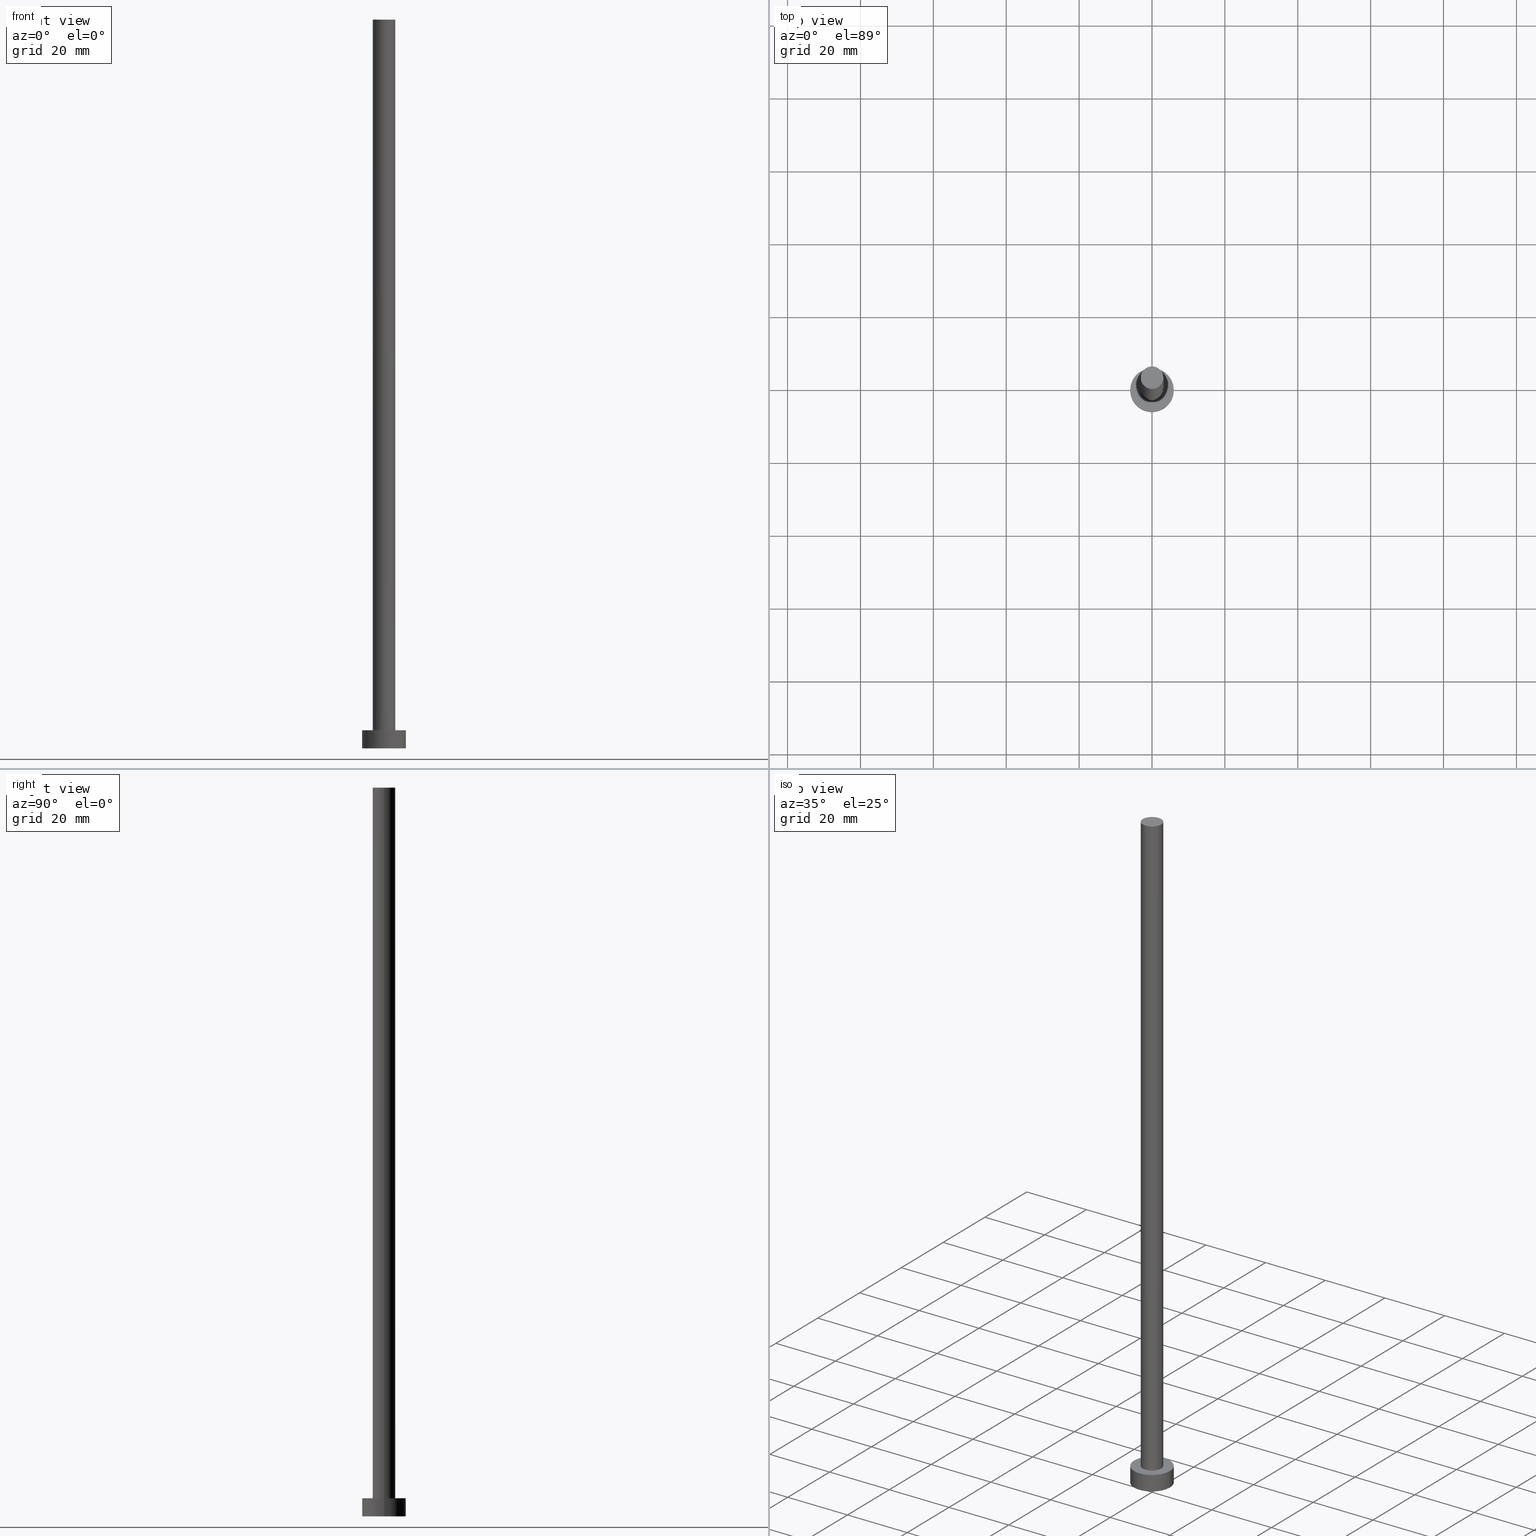
[diagram: canonical four-view strip — front | top / right | iso, engineering-drawing reading convention]
A machine part, canonical four-view strip (front | top / right | iso — engineering-drawing reading convention). The complete STEP part file that produces these views, byte-faithful:
ISO-10303-21;
HEADER;
FILE_DESCRIPTION (( 'STEP AP203' ),
    '1' );
FILE_NAME ('b2dd.STEP',
    '2023-02-13T15:42:44',
    ( '' ),
    ( '' ),
    'SwSTEP 2.0',
    'SolidWorks 2019',
    '' );
FILE_SCHEMA (( 'CONFIG_CONTROL_DESIGN' ));
ENDSEC;

DATA;
#1 = APPLICATION_PROTOCOL_DEFINITION ( 'international standard', 'config_control_design', 1994, #50 ) ;
#2 = CIRCLE ( 'NONE', #120, 6.000000000000000888 ) ;
#3 = VECTOR ( 'NONE', #184, 1000.000000000000000 ) ;
#4 = DIRECTION ( 'NONE',  ( 0.000000000000000000, 0.000000000000000000, 1.000000000000000000 ) ) ;
#5 = CIRCLE ( 'NONE', #31, 6.000000000000000888 ) ;
#6 = DATE_AND_TIME ( #90, #115 ) ;
#7 = ORIENTED_EDGE ( 'NONE', *, *, #220, .T. ) ;
#8 = PERSON_AND_ORGANIZATION ( #70, #210 ) ;
#9 = DATE_AND_TIME ( #48, #179 ) ;
#10 = EDGE_LOOP ( 'NONE', ( #146, #117, #29, #166 ) ) ;
#11 = CIRCLE ( 'NONE', #157, 3.100000000000000089 ) ;
#12 = CARTESIAN_POINT ( 'NONE',  ( 0.000000000000000000, 0.000000000000000000, 5.000000000000000000 ) ) ;
#13 = FACE_BOUND ( 'NONE', #205, .T. ) ;
#14 =( NAMED_UNIT ( * ) SI_UNIT ( $, .STERADIAN. ) SOLID_ANGLE_UNIT ( ) );
#15 = CARTESIAN_POINT ( 'NONE',  ( -6.000000000000000888, 0.000000000000000000, 0.000000000000000000 ) ) ;
#16 = CARTESIAN_POINT ( 'NONE',  ( 6.000000000000000888, 7.347880794884120722E-16, 5.000000000000000000 ) ) ;
#17 = LINE ( 'NONE', #97, #3 ) ;
#18 = APPROVAL_ROLE ( '' ) ;
#19 = DIRECTION ( 'NONE',  ( -0.000000000000000000, -0.000000000000000000, -1.000000000000000000 ) ) ;
#20 = DIRECTION ( 'NONE',  ( 0.000000000000000000, 0.000000000000000000, 1.000000000000000000 ) ) ;
#21 = APPROVAL ( #65, 'NEUR�EN�' ) ;
#22 = APPLICATION_CONTEXT ( 'configuration controlled 3d designs of mechanical parts and assemblies' ) ;
#23 = SECURITY_CLASSIFICATION ( '', '', #181 ) ;
#24 = CC_DESIGN_PERSON_AND_ORGANIZATION_ASSIGNMENT ( #162, #221, ( #102 ) ) ;
#25 = APPROVAL_ROLE ( '' ) ;
#26 = PERSON_AND_ORGANIZATION_ROLE ( 'creator' ) ;
#27 = ORIENTED_EDGE ( 'NONE', *, *, #132, .T. ) ;
#28 = CALENDAR_DATE ( 2023, 13, 2 ) ;
#29 = ORIENTED_EDGE ( 'NONE', *, *, #248, .T. ) ;
#30 = PERSON_AND_ORGANIZATION ( #70, #210 ) ;
#31 = AXIS2_PLACEMENT_3D ( 'NONE', #178, #4, #207 ) ;
#32 = PLANE ( 'NONE',  #107 ) ;
#33 = AXIS2_PLACEMENT_3D ( 'NONE', #245, #100, #228 ) ;
#34 =( LENGTH_UNIT ( ) NAMED_UNIT ( * ) SI_UNIT ( .MILLI., .METRE. ) );
#35 =( NAMED_UNIT ( * ) PLANE_ANGLE_UNIT ( ) SI_UNIT ( $, .RADIAN. ) );
#36 = ORIENTED_EDGE ( 'NONE', *, *, #92, .T. ) ;
#37 = DATE_TIME_ROLE ( 'classification_date' ) ;
#38 = DIRECTION ( 'NONE',  ( -0.000000000000000000, -0.000000000000000000, -1.000000000000000000 ) ) ;
#39 = DIRECTION ( 'NONE',  ( 1.000000000000000000, 0.000000000000000000, 0.000000000000000000 ) ) ;
#40 = ORIENTED_EDGE ( 'NONE', *, *, #104, .T. ) ;
#41 = PRODUCT_DEFINITION ( 'NEZN�M�', '', #102, #219 ) ;
#42 = VERTEX_POINT ( 'NONE', #15 ) ;
#43 = APPLICATION_PROTOCOL_DEFINITION ( 'international standard', 'config_control_design', 1994, #22 ) ;
#44 = ADVANCED_FACE ( 'NONE', ( #111 ), #114, .T. ) ;
#45 = AXIS2_PLACEMENT_3D ( 'NONE', #110, #19, #148 ) ;
#46 = CARTESIAN_POINT ( 'NONE',  ( 6.000000000000000888, 7.347880794884120722E-16, 0.000000000000000000 ) ) ;
#47 = EDGE_CURVE ( 'NONE', #194, #42, #53, .T. ) ;
#48 = CALENDAR_DATE ( 2023, 13, 2 ) ;
#49 = COORDINATED_UNIVERSAL_TIME_OFFSET ( 1, 0, .AHEAD. ) ;
#50 = APPLICATION_CONTEXT ( 'configuration controlled 3d designs of mechanical parts and assemblies' ) ;
#51 = CYLINDRICAL_SURFACE ( 'NONE', #125, 6.000000000000000888 ) ;
#52 = CARTESIAN_POINT ( 'NONE',  ( 0.000000000000000000, 0.000000000000000000, 0.000000000000000000 ) ) ;
#53 = CIRCLE ( 'NONE', #240, 6.000000000000000888 ) ;
#54 = DIRECTION ( 'NONE',  ( 1.000000000000000000, 0.000000000000000000, 0.000000000000000000 ) ) ;
#55 = ORIENTED_EDGE ( 'NONE', *, *, #47, .F. ) ;
#56 = APPROVAL_PERSON_ORGANIZATION ( #91, #199, #93 ) ;
#57 = CARTESIAN_POINT ( 'NONE',  ( 0.000000000000000000, 0.000000000000000000, 0.000000000000000000 ) ) ;
#58 = ADVANCED_BREP_SHAPE_REPRESENTATION ( 'b2dd', ( #185, #133 ), #140 ) ;
#59 = DIRECTION ( 'NONE',  ( -0.000000000000000000, -0.000000000000000000, -1.000000000000000000 ) ) ;
#60 = DIRECTION ( 'NONE',  ( 0.000000000000000000, 0.000000000000000000, 1.000000000000000000 ) ) ;
#61 = ORIENTED_EDGE ( 'NONE', *, *, #203, .F. ) ;
#62 = DIRECTION ( 'NONE',  ( 1.000000000000000000, 0.000000000000000000, 0.000000000000000000 ) ) ;
#63 = PRODUCT ( 'b2dd', 'b2dd', '', ( #158 ) ) ;
#64 = APPROVAL_DATE_TIME ( #253, #150 ) ;
#65 = APPROVAL_STATUS ( 'not_yet_approved' ) ;
#66 = VERTEX_POINT ( 'NONE', #74 ) ;
#67 = CIRCLE ( 'NONE', #204, 6.000000000000000888 ) ;
#68 = ADVANCED_FACE ( 'NONE', ( #76 ), #32, .T. ) ;
#69 = VECTOR ( 'NONE', #211, 1000.000000000000000 ) ;
#70 = PERSON ( 'NEUR�EN�', 'NEUR�EN�', 'NEUR�EN�', ('NEUR�EN�'), ('NEUR�EN�'), ('NEUR�EN�') ) ;
#71 = CC_DESIGN_APPROVAL ( #150, ( #23 ) ) ;
#72 = DIRECTION ( 'NONE',  ( 1.000000000000000000, 0.000000000000000000, 0.000000000000000000 ) ) ;
#73 = EDGE_LOOP ( 'NONE', ( #40, #105 ) ) ;
#74 = CARTESIAN_POINT ( 'NONE',  ( 3.100000000000000089, 3.796405077356794918E-16, 200.0000000000000000 ) ) ;
#75 = ORIENTED_EDGE ( 'NONE', *, *, #248, .F. ) ;
#76 = FACE_OUTER_BOUND ( 'NONE', #73, .T. ) ;
#77 = LOCAL_TIME ( 16, 42, 44.00000000000000000, #223 ) ;
#78 = LINE ( 'NONE', #153, #249 ) ;
#79 = VERTEX_POINT ( 'NONE', #164 ) ;
#80 = SHAPE_DEFINITION_REPRESENTATION ( #176, #58 ) ;
#81 = PERSON_AND_ORGANIZATION_ROLE ( 'design_owner' ) ;
#82 = EDGE_CURVE ( 'NONE', #79, #124, #78, .T. ) ;
#83 = PERSON_AND_ORGANIZATION ( #70, #210 ) ;
#84 = AXIS2_PLACEMENT_3D ( 'NONE', #85, #116, #62 ) ;
#85 = CARTESIAN_POINT ( 'NONE',  ( 0.000000000000000000, 0.000000000000000000, 200.0000000000000000 ) ) ;
#86 = UNCERTAINTY_MEASURE_WITH_UNIT (LENGTH_MEASURE( 1.000000000000000082E-05 ), #34, 'distance_accuracy_value', 'NONE');
#87 = AXIS2_PLACEMENT_3D ( 'NONE', #94, #227, #215 ) ;
#88 = APPROVAL_DATE_TIME ( #6, #21 ) ;
#89 = ADVANCED_FACE ( 'NONE', ( #113 ), #130, .F. ) ;
#90 = CALENDAR_DATE ( 2023, 13, 2 ) ;
#91 = PERSON_AND_ORGANIZATION ( #70, #210 ) ;
#92 = EDGE_CURVE ( 'NONE', #239, #213, #67, .T. ) ;
#93 = APPROVAL_ROLE ( '' ) ;
#94 = CARTESIAN_POINT ( 'NONE',  ( 0.000000000000000000, 0.000000000000000000, 5.000000000000000000 ) ) ;
#95 = CARTESIAN_POINT ( 'NONE',  ( 0.000000000000000000, 0.000000000000000000, 5.000000000000000000 ) ) ;
#96 = AXIS2_PLACEMENT_3D ( 'NONE', #134, #186, #254 ) ;
#97 = CARTESIAN_POINT ( 'NONE',  ( 3.100000000000000089, 3.796405077356794918E-16, 200.0000000000000000 ) ) ;
#98 = ORIENTED_EDGE ( 'NONE', *, *, #104, .F. ) ;
#99 = CARTESIAN_POINT ( 'NONE',  ( 0.000000000000000000, 0.000000000000000000, 0.000000000000000000 ) ) ;
#100 = DIRECTION ( 'NONE',  ( -0.000000000000000000, -0.000000000000000000, -1.000000000000000000 ) ) ;
#101 = DIRECTION ( 'NONE',  ( 0.000000000000000000, 0.000000000000000000, 1.000000000000000000 ) ) ;
#102 = PRODUCT_DEFINITION_FORMATION_WITH_SPECIFIED_SOURCE ( 'LIBOVOLN�', '', #63, .NOT_KNOWN. ) ;
#103 = ORIENTED_EDGE ( 'NONE', *, *, #174, .T. ) ;
#104 = EDGE_CURVE ( 'NONE', #79, #66, #136, .T. ) ;
#105 = ORIENTED_EDGE ( 'NONE', *, *, #203, .T. ) ;
#106 = DATE_AND_TIME ( #28, #197 ) ;
#107 = AXIS2_PLACEMENT_3D ( 'NONE', #232, #156, #135 ) ;
#108 = CC_DESIGN_PERSON_AND_ORGANIZATION_ASSIGNMENT ( #30, #26, ( #102 ) ) ;
#109 = ORIENTED_EDGE ( 'NONE', *, *, #82, .F. ) ;
#110 = CARTESIAN_POINT ( 'NONE',  ( 0.000000000000000000, 0.000000000000000000, 200.0000000000000000 ) ) ;
#111 = FACE_OUTER_BOUND ( 'NONE', #180, .T. ) ;
#112 = PERSON_AND_ORGANIZATION ( #70, #210 ) ;
#113 = FACE_OUTER_BOUND ( 'NONE', #238, .T. ) ;
#114 = CYLINDRICAL_SURFACE ( 'NONE', #33, 3.100000000000000089 ) ;
#115 = LOCAL_TIME ( 16, 42, 44.00000000000000000, #49 ) ;
#116 = DIRECTION ( 'NONE',  ( 0.000000000000000000, 0.000000000000000000, 1.000000000000000000 ) ) ;
#117 = ORIENTED_EDGE ( 'NONE', *, *, #92, .F. ) ;
#118 = EDGE_CURVE ( 'NONE', #121, #124, #123, .T. ) ;
#119 = COORDINATED_UNIVERSAL_TIME_OFFSET ( 1, 0, .AHEAD. ) ;
#120 = AXIS2_PLACEMENT_3D ( 'NONE', #235, #60, #39 ) ;
#121 = VERTEX_POINT ( 'NONE', #212 ) ;
#122 = PERSON_AND_ORGANIZATION ( #70, #210 ) ;
#123 = CIRCLE ( 'NONE', #87, 3.100000000000000089 ) ;
#124 = VERTEX_POINT ( 'NONE', #190 ) ;
#125 = AXIS2_PLACEMENT_3D ( 'NONE', #95, #167, #195 ) ;
#126 = CC_DESIGN_DATE_AND_TIME_ASSIGNMENT ( #9, #141, ( #41 ) ) ;
#127 = CARTESIAN_POINT ( 'NONE',  ( -6.000000000000000888, 0.000000000000000000, 5.000000000000000000 ) ) ;
#128 = DIRECTION ( 'NONE',  ( 1.000000000000000000, 0.000000000000000000, -0.000000000000000000 ) ) ;
#129 = FACE_OUTER_BOUND ( 'NONE', #161, .T. ) ;
#130 = PLANE ( 'NONE',  #169 ) ;
#131 = FACE_OUTER_BOUND ( 'NONE', #224, .T. ) ;
#132 = EDGE_CURVE ( 'NONE', #66, #121, #17, .T. ) ;
#133 = AXIS2_PLACEMENT_3D ( 'NONE', #99, #101, #139 ) ;
#134 = CARTESIAN_POINT ( 'NONE',  ( 0.000000000000000000, 0.000000000000000000, 200.0000000000000000 ) ) ;
#135 = DIRECTION ( 'NONE',  ( 1.000000000000000000, 0.000000000000000000, -0.000000000000000000 ) ) ;
#136 = CIRCLE ( 'NONE', #96, 3.100000000000000089 ) ;
#137 = APPROVAL_STATUS ( 'not_yet_approved' ) ;
#138 = CIRCLE ( 'NONE', #84, 3.100000000000000089 ) ;
#139 = DIRECTION ( 'NONE',  ( 1.000000000000000000, 0.000000000000000000, 0.000000000000000000 ) ) ;
#140 =( GEOMETRIC_REPRESENTATION_CONTEXT ( 3 ) GLOBAL_UNCERTAINTY_ASSIGNED_CONTEXT ( ( #86 ) ) GLOBAL_UNIT_ASSIGNED_CONTEXT ( ( #34, #35, #14 ) ) REPRESENTATION_CONTEXT ( 'NONE', 'WORKASPACE' ) );
#141 = DATE_TIME_ROLE ( 'creation_date' ) ;
#142 = ORIENTED_EDGE ( 'NONE', *, *, #132, .F. ) ;
#143 = COORDINATED_UNIVERSAL_TIME_OFFSET ( 1, 0, .AHEAD. ) ;
#144 = VECTOR ( 'NONE', #38, 1000.000000000000000 ) ;
#145 = PERSON_AND_ORGANIZATION_ROLE ( 'classification_officer' ) ;
#146 = ORIENTED_EDGE ( 'NONE', *, *, #222, .F. ) ;
#147 = DATE_AND_TIME ( #247, #77 ) ;
#148 = DIRECTION ( 'NONE',  ( -1.000000000000000000, 0.000000000000000000, 0.000000000000000000 ) ) ;
#149 = DIRECTION ( 'NONE',  ( 0.000000000000000000, 0.000000000000000000, 1.000000000000000000 ) ) ;
#150 = APPROVAL ( #137, 'NEUR�EN�' ) ;
#151 = CARTESIAN_POINT ( 'NONE',  ( 0.000000000000000000, 0.000000000000000000, 5.000000000000000000 ) ) ;
#152 = DIRECTION ( 'NONE',  ( 1.000000000000000000, 0.000000000000000000, 0.000000000000000000 ) ) ;
#153 = CARTESIAN_POINT ( 'NONE',  ( -3.100000000000000089, 0.000000000000000000, 200.0000000000000000 ) ) ;
#154 = CARTESIAN_POINT ( 'NONE',  ( 0.000000000000000000, 0.000000000000000000, 5.000000000000000000 ) ) ;
#155 = DIRECTION ( 'NONE',  ( 1.000000000000000000, 0.000000000000000000, -0.000000000000000000 ) ) ;
#156 = DIRECTION ( 'NONE',  ( 0.000000000000000000, 0.000000000000000000, 1.000000000000000000 ) ) ;
#157 = AXIS2_PLACEMENT_3D ( 'NONE', #209, #244, #72 ) ;
#158 = MECHANICAL_CONTEXT ( 'NONE', #22, 'mechanical' ) ;
#159 = ORIENTED_EDGE ( 'NONE', *, *, #47, .T. ) ;
#160 = CC_DESIGN_APPROVAL ( #199, ( #102 ) ) ;
#161 = EDGE_LOOP ( 'NONE', ( #246, #175, #159, #75 ) ) ;
#162 = PERSON_AND_ORGANIZATION ( #70, #210 ) ;
#163 = ADVANCED_FACE ( 'NONE', ( #13, #208 ), #171, .T. ) ;
#164 = CARTESIAN_POINT ( 'NONE',  ( -3.100000000000000089, 0.000000000000000000, 200.0000000000000000 ) ) ;
#165 = EDGE_CURVE ( 'NONE', #42, #194, #2, .T. ) ;
#166 = ORIENTED_EDGE ( 'NONE', *, *, #165, .T. ) ;
#167 = DIRECTION ( 'NONE',  ( -0.000000000000000000, -0.000000000000000000, -1.000000000000000000 ) ) ;
#168 = ORIENTED_EDGE ( 'NONE', *, *, #118, .F. ) ;
#169 = AXIS2_PLACEMENT_3D ( 'NONE', #57, #149, #128 ) ;
#170 = CYLINDRICAL_SURFACE ( 'NONE', #218, 6.000000000000000888 ) ;
#171 = PLANE ( 'NONE',  #237 ) ;
#172 = CALENDAR_DATE ( 2023, 13, 2 ) ;
#173 = FACE_OUTER_BOUND ( 'NONE', #10, .T. ) ;
#174 = EDGE_CURVE ( 'NONE', #124, #121, #11, .T. ) ;
#175 = ORIENTED_EDGE ( 'NONE', *, *, #222, .T. ) ;
#176 = PRODUCT_DEFINITION_SHAPE ( 'NONE', 'NONE',  #41 ) ;
#177 = ADVANCED_FACE ( 'NONE', ( #173 ), #51, .T. ) ;
#178 = CARTESIAN_POINT ( 'NONE',  ( 0.000000000000000000, 0.000000000000000000, 5.000000000000000000 ) ) ;
#179 = LOCAL_TIME ( 16, 42, 44.00000000000000000, #143 ) ;
#180 = EDGE_LOOP ( 'NONE', ( #142, #98, #188, #103 ) ) ;
#181 = SECURITY_CLASSIFICATION_LEVEL ( 'unclassified' ) ;
#182 = PRODUCT_RELATED_PRODUCT_CATEGORY ( 'detail', '', ( #63 ) ) ;
#183 = CC_DESIGN_APPROVAL ( #21, ( #41 ) ) ;
#184 = DIRECTION ( 'NONE',  ( -0.000000000000000000, -0.000000000000000000, -1.000000000000000000 ) ) ;
#185 = MANIFOLD_SOLID_BREP ( 'P�idat vysunut�m3', #191 ) ;
#186 = DIRECTION ( 'NONE',  ( 0.000000000000000000, 0.000000000000000000, 1.000000000000000000 ) ) ;
#187 = DIRECTION ( 'NONE',  ( 0.000000000000000000, 0.000000000000000000, 1.000000000000000000 ) ) ;
#188 = ORIENTED_EDGE ( 'NONE', *, *, #82, .T. ) ;
#189 = LINE ( 'NONE', #16, #69 ) ;
#190 = CARTESIAN_POINT ( 'NONE',  ( -3.100000000000000089, 0.000000000000000000, 5.000000000000000000 ) ) ;
#191 = CLOSED_SHELL ( 'NONE', ( #243, #242, #177, #163, #89, #44, #68 ) ) ;
#192 = COORDINATED_UNIVERSAL_TIME_OFFSET ( 1, 0, .AHEAD. ) ;
#193 = DIRECTION ( 'NONE',  ( -0.000000000000000000, -0.000000000000000000, -1.000000000000000000 ) ) ;
#194 = VERTEX_POINT ( 'NONE', #46 ) ;
#195 = DIRECTION ( 'NONE',  ( -1.000000000000000000, 0.000000000000000000, 0.000000000000000000 ) ) ;
#196 = CC_DESIGN_DATE_AND_TIME_ASSIGNMENT ( #147, #37, ( #23 ) ) ;
#197 = LOCAL_TIME ( 16, 42, 44.00000000000000000, #119 ) ;
#198 = CARTESIAN_POINT ( 'NONE',  ( 6.000000000000000888, 7.347880794884120722E-16, 5.000000000000000000 ) ) ;
#199 = APPROVAL ( #202, 'NEUR�EN�' ) ;
#200 = APPROVAL_DATE_TIME ( #106, #199 ) ;
#201 = APPROVAL_PERSON_ORGANIZATION ( #236, #21, #25 ) ;
#202 = APPROVAL_STATUS ( 'not_yet_approved' ) ;
#203 = EDGE_CURVE ( 'NONE', #66, #79, #138, .T. ) ;
#204 = AXIS2_PLACEMENT_3D ( 'NONE', #151, #20, #54 ) ;
#205 = EDGE_LOOP ( 'NONE', ( #217, #168 ) ) ;
#206 = APPROVAL_PERSON_ORGANIZATION ( #112, #150, #18 ) ;
#207 = DIRECTION ( 'NONE',  ( 1.000000000000000000, 0.000000000000000000, 0.000000000000000000 ) ) ;
#208 = FACE_OUTER_BOUND ( 'NONE', #230, .T. ) ;
#209 = CARTESIAN_POINT ( 'NONE',  ( 0.000000000000000000, 0.000000000000000000, 5.000000000000000000 ) ) ;
#210 = ORGANIZATION ( 'NEUR�EN�', 'NEUR�EN�', '' ) ;
#211 = DIRECTION ( 'NONE',  ( -0.000000000000000000, -0.000000000000000000, -1.000000000000000000 ) ) ;
#212 = CARTESIAN_POINT ( 'NONE',  ( 3.100000000000000089, 3.796405077356794918E-16, 5.000000000000000000 ) ) ;
#213 = VERTEX_POINT ( 'NONE', #198 ) ;
#214 = LINE ( 'NONE', #127, #144 ) ;
#215 = DIRECTION ( 'NONE',  ( 1.000000000000000000, 0.000000000000000000, 0.000000000000000000 ) ) ;
#216 = ORIENTED_EDGE ( 'NONE', *, *, #118, .T. ) ;
#217 = ORIENTED_EDGE ( 'NONE', *, *, #174, .F. ) ;
#218 = AXIS2_PLACEMENT_3D ( 'NONE', #154, #59, #229 ) ;
#219 = DESIGN_CONTEXT ( 'detailed design', #50, 'design' ) ;
#220 = EDGE_CURVE ( 'NONE', #213, #239, #5, .T. ) ;
#221 = PERSON_AND_ORGANIZATION_ROLE ( 'design_supplier' ) ;
#222 = EDGE_CURVE ( 'NONE', #213, #194, #189, .T. ) ;
#223 = COORDINATED_UNIVERSAL_TIME_OFFSET ( 1, 0, .AHEAD. ) ;
#224 = EDGE_LOOP ( 'NONE', ( #61, #27, #216, #109 ) ) ;
#225 = CC_DESIGN_PERSON_AND_ORGANIZATION_ASSIGNMENT ( #8, #145, ( #23 ) ) ;
#226 = CYLINDRICAL_SURFACE ( 'NONE', #45, 3.100000000000000089 ) ;
#227 = DIRECTION ( 'NONE',  ( 0.000000000000000000, 0.000000000000000000, 1.000000000000000000 ) ) ;
#228 = DIRECTION ( 'NONE',  ( -1.000000000000000000, 0.000000000000000000, 0.000000000000000000 ) ) ;
#229 = DIRECTION ( 'NONE',  ( -1.000000000000000000, 0.000000000000000000, 0.000000000000000000 ) ) ;
#230 = EDGE_LOOP ( 'NONE', ( #36, #7 ) ) ;
#231 = LOCAL_TIME ( 16, 42, 44.00000000000000000, #192 ) ;
#232 = CARTESIAN_POINT ( 'NONE',  ( 0.000000000000000000, 0.000000000000000000, 200.0000000000000000 ) ) ;
#233 = CC_DESIGN_PERSON_AND_ORGANIZATION_ASSIGNMENT ( #122, #241, ( #41 ) ) ;
#234 = CARTESIAN_POINT ( 'NONE',  ( -6.000000000000000888, 0.000000000000000000, 5.000000000000000000 ) ) ;
#235 = CARTESIAN_POINT ( 'NONE',  ( 0.000000000000000000, 0.000000000000000000, 0.000000000000000000 ) ) ;
#236 = PERSON_AND_ORGANIZATION ( #70, #210 ) ;
#237 = AXIS2_PLACEMENT_3D ( 'NONE', #12, #251, #155 ) ;
#238 = EDGE_LOOP ( 'NONE', ( #252, #55 ) ) ;
#239 = VERTEX_POINT ( 'NONE', #234 ) ;
#240 = AXIS2_PLACEMENT_3D ( 'NONE', #52, #187, #152 ) ;
#241 = PERSON_AND_ORGANIZATION_ROLE ( 'creator' ) ;
#242 = ADVANCED_FACE ( 'NONE', ( #129 ), #170, .T. ) ;
#243 = ADVANCED_FACE ( 'NONE', ( #131 ), #226, .T. ) ;
#244 = DIRECTION ( 'NONE',  ( 0.000000000000000000, 0.000000000000000000, 1.000000000000000000 ) ) ;
#245 = CARTESIAN_POINT ( 'NONE',  ( 0.000000000000000000, 0.000000000000000000, 200.0000000000000000 ) ) ;
#246 = ORIENTED_EDGE ( 'NONE', *, *, #220, .F. ) ;
#247 = CALENDAR_DATE ( 2023, 13, 2 ) ;
#248 = EDGE_CURVE ( 'NONE', #239, #42, #214, .T. ) ;
#249 = VECTOR ( 'NONE', #193, 1000.000000000000000 ) ;
#250 = CC_DESIGN_SECURITY_CLASSIFICATION ( #23, ( #102 ) ) ;
#251 = DIRECTION ( 'NONE',  ( 0.000000000000000000, 0.000000000000000000, 1.000000000000000000 ) ) ;
#252 = ORIENTED_EDGE ( 'NONE', *, *, #165, .F. ) ;
#253 = DATE_AND_TIME ( #172, #231 ) ;
#254 = DIRECTION ( 'NONE',  ( 1.000000000000000000, 0.000000000000000000, 0.000000000000000000 ) ) ;
#255 = CC_DESIGN_PERSON_AND_ORGANIZATION_ASSIGNMENT ( #83, #81, ( #63 ) ) ;
ENDSEC;
END-ISO-10303-21;
